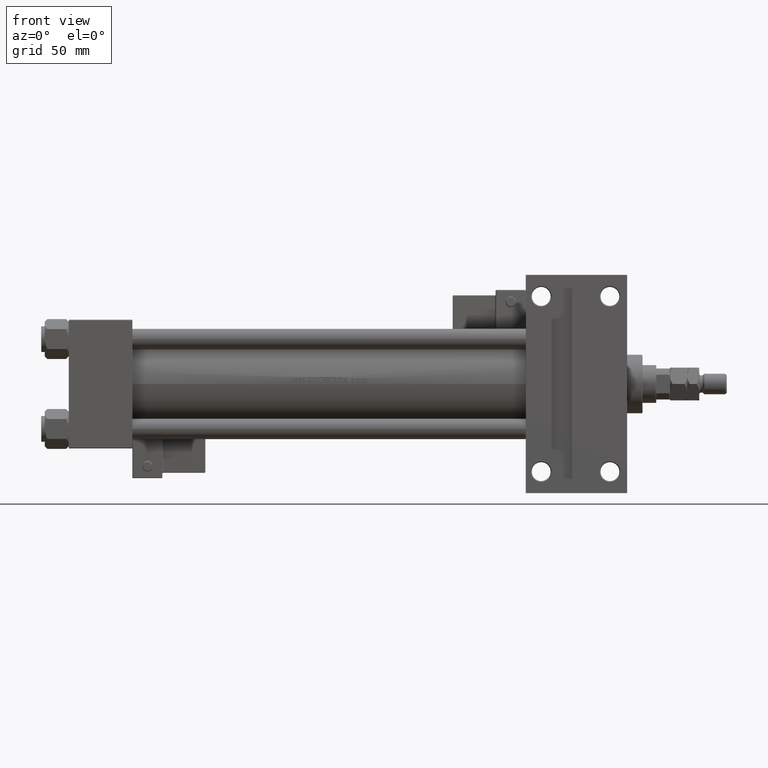
[diagram: clean part render]
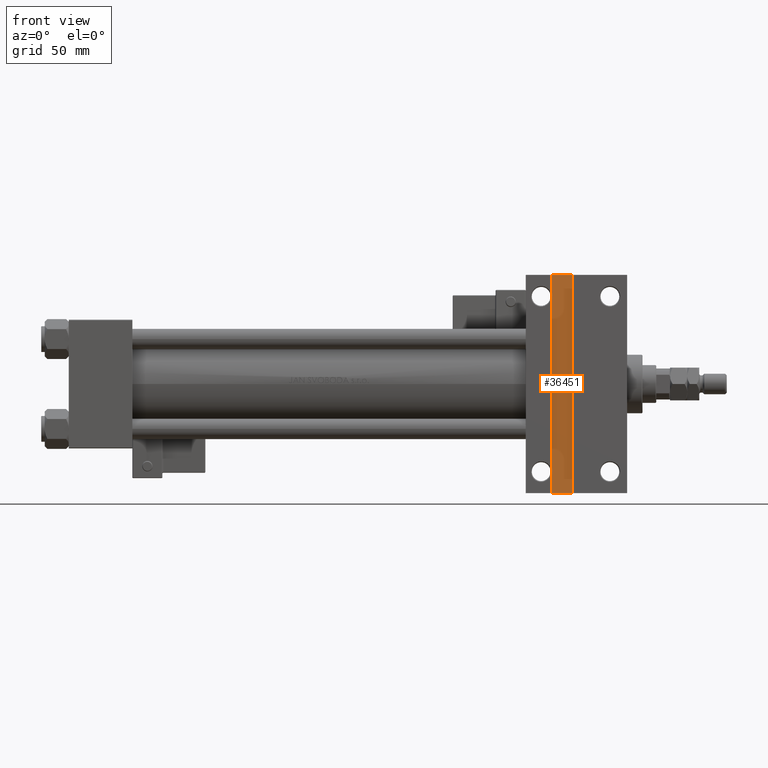
[diagram: same view with one face highlighted and labeled with its STEP entity id]
A machine part, front view. The second image highlights one B-rep face of the part: STEP entity #36451.
In plain terms, the highlighted planar face has unit normal (0, -1, 0).
Its self-contained STEP definition (entity closure, byte-faithful):
#662 = CARTESIAN_POINT ( 'NONE',  ( 293.0000000000000000, -63.49999999999998579, -32.00000000000000000 ) ) ;
#2664 = CARTESIAN_POINT ( 'NONE',  ( 281.0000000000000000, 63.49999999999997158, -32.00000000000000000 ) ) ;
#7135 = PLANE ( 'NONE',  #41006 ) ;
#9605 = CARTESIAN_POINT ( 'NONE',  ( 281.0000000000000000, 63.49999999999997158, -32.00000000000000000 ) ) ;
#10308 = ORIENTED_EDGE ( 'NONE', *, *, #29183, .T. ) ;
#10709 = EDGE_CURVE ( 'NONE', #40461, #37622, #50303, .T. ) ;
#11729 = DIRECTION ( 'NONE',  ( 0.000000000000000000, 1.000000000000000000, 0.000000000000000000 ) ) ;
#12605 = DIRECTION ( 'NONE',  ( -0.000000000000000000, -1.000000000000000000, -0.000000000000000000 ) ) ;
#14693 = DIRECTION ( 'NONE',  ( 0.000000000000000000, 0.000000000000000000, -1.000000000000000000 ) ) ;
#15203 = FACE_OUTER_BOUND ( 'NONE', #40267, .T. ) ;
#16374 = VECTOR ( 'NONE', #45572, 1000.000000000000000 ) ;
#17780 = ORIENTED_EDGE ( 'NONE', *, *, #43474, .T. ) ;
#18333 = EDGE_CURVE ( 'NONE', #47621, #22730, #33359, .T. ) ;
#19279 = VECTOR ( 'NONE', #12605, 1000.000000000000000 ) ;
#22730 = VERTEX_POINT ( 'NONE', #29565 ) ;
#26879 = CARTESIAN_POINT ( 'NONE',  ( 0.000000000000000000, 0.000000000000000000, -32.00000000000000000 ) ) ;
#27589 = LINE ( 'NONE', #31508, #37932 ) ;
#29183 = EDGE_CURVE ( 'NONE', #22730, #40461, #29477, .T. ) ;
#29477 = LINE ( 'NONE', #662, #19279 ) ;
#29565 = CARTESIAN_POINT ( 'NONE',  ( 293.0000000000000000, 63.49999999999997158, -32.00000000000000000 ) ) ;
#30261 = DIRECTION ( 'NONE',  ( -1.000000000000000000, 0.000000000000000000, -0.000000000000000000 ) ) ;
#31508 = CARTESIAN_POINT ( 'NONE',  ( 281.0000000000000000, -63.49999999999998579, -32.00000000000000000 ) ) ;
#33359 = LINE ( 'NONE', #2664, #16374 ) ;
#34278 = ORIENTED_EDGE ( 'NONE', *, *, #18333, .T. ) ;
#36451 = ADVANCED_FACE ( 'NONE', ( #15203 ), #7135, .T. ) ;
#37622 = VERTEX_POINT ( 'NONE', #45513 ) ;
#37932 = VECTOR ( 'NONE', #11729, 1000.000000000000000 ) ;
#40267 = EDGE_LOOP ( 'NONE', ( #10308, #40917, #17780, #34278 ) ) ;
#40461 = VERTEX_POINT ( 'NONE', #42025 ) ;
#40917 = ORIENTED_EDGE ( 'NONE', *, *, #10709, .T. ) ;
#41006 = AXIS2_PLACEMENT_3D ( 'NONE', #26879, #14693, #30261 ) ;
#42025 = CARTESIAN_POINT ( 'NONE',  ( 292.9999999999999432, -63.50000000000002842, -32.00000000000000000 ) ) ;
#43474 = EDGE_CURVE ( 'NONE', #37622, #47621, #27589, .T. ) ;
#45513 = CARTESIAN_POINT ( 'NONE',  ( 281.0000000000000000, -63.49999999999998579, -32.00000000000000000 ) ) ;
#45572 = DIRECTION ( 'NONE',  ( 1.000000000000000000, 0.000000000000000000, 0.000000000000000000 ) ) ;
#46417 = CARTESIAN_POINT ( 'NONE',  ( 281.0000000000000000, -63.49999999999998579, -32.00000000000000000 ) ) ;
#46867 = VECTOR ( 'NONE', #49544, 1000.000000000000000 ) ;
#47621 = VERTEX_POINT ( 'NONE', #9605 ) ;
#49544 = DIRECTION ( 'NONE',  ( -1.000000000000000000, -0.000000000000000000, -0.000000000000000000 ) ) ;
#50303 = LINE ( 'NONE', #46417, #46867 ) ;